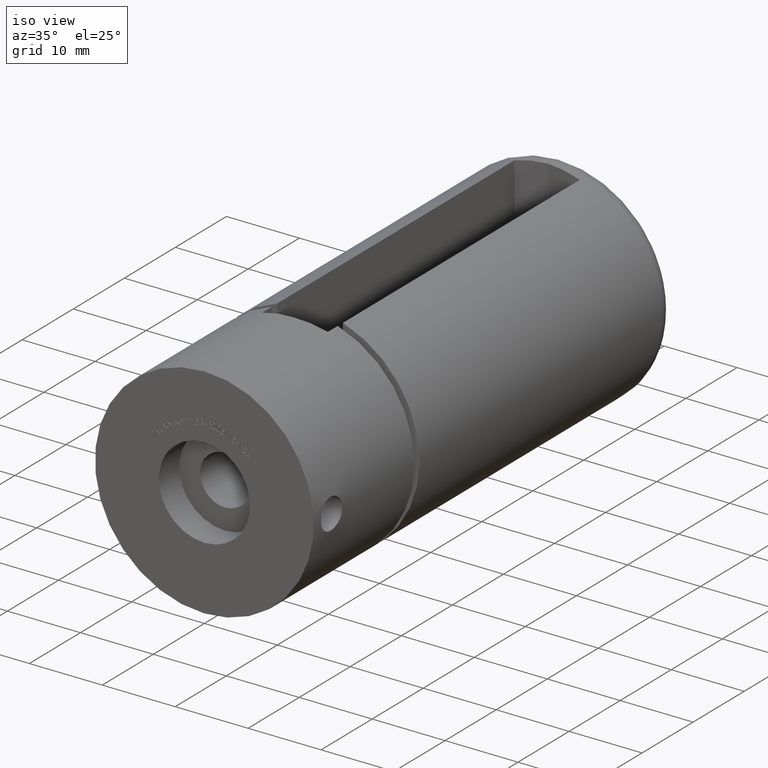
[diagram: clean part render]
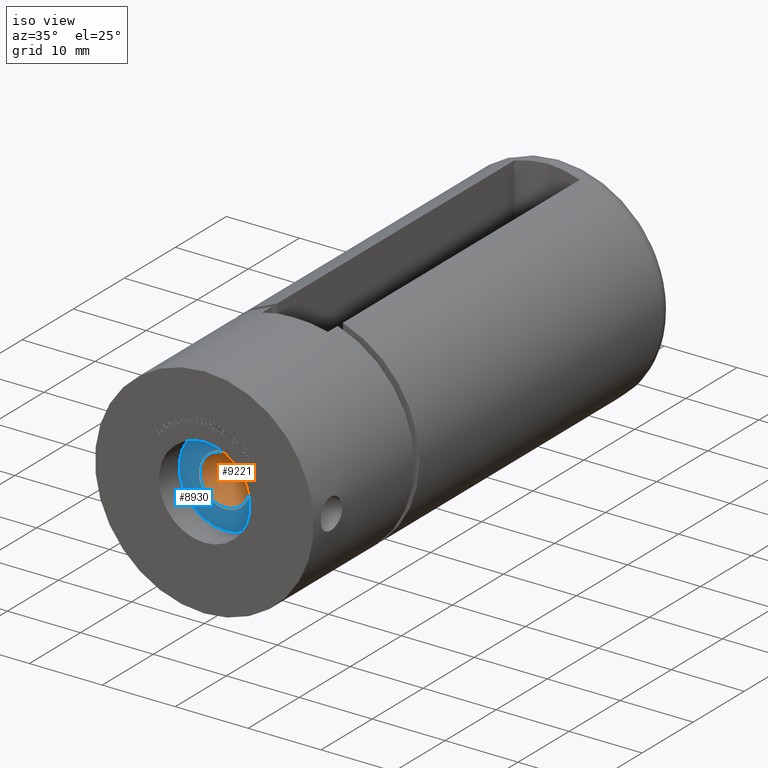
[diagram: same view with the hole feature highlighted: cylindrical wall and planar end face, labeled with their STEP entity ids]
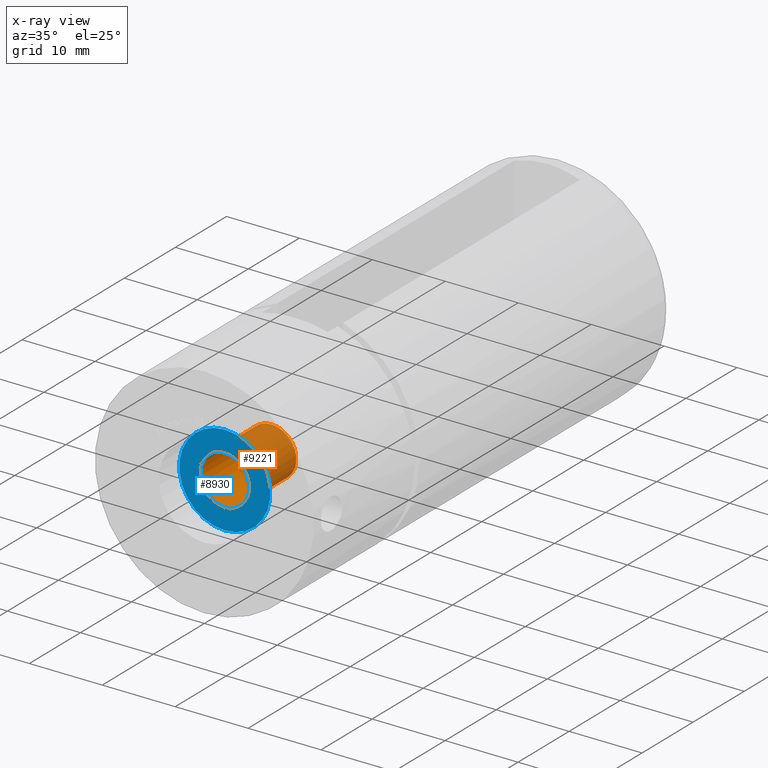
[diagram: x-ray of the same camera — body ghosted, the hole faces saturated]
A machine part, iso view. The highlighted faces form one hole feature of diameter 6.8 mm: the cylindrical wall (entity #9221, orange) and its adjacent planar end face (entity #8930, blue) — they share a circular edge in the B-rep.
The next image is the same camera in x-ray (body ghosted, the hole faces saturated) — the bore reads through the body.
Wall:
#77 = DIRECTION ( 'NONE',  ( -0.0000000000000000000, -1.000000000000000000, -0.0000000000000000000 ) ) ;
#427 = ORIENTED_EDGE ( 'NONE', *, *, #1170, .T. ) ;
#802 = CIRCLE ( 'NONE', #16973, 3.399999999999997700 ) ;
#1170 = EDGE_CURVE ( 'NONE', #4224, #4224, #1639, .T. ) ;
#1639 = CIRCLE ( 'NONE', #12198, 3.399999999999998600 ) ;
#2893 = DIRECTION ( 'NONE',  ( -0.0000000000000000000, -1.000000000000000000, -0.0000000000000000000 ) ) ;
#3001 = EDGE_LOOP ( 'NONE', ( #427 ) ) ;
#3077 = CARTESIAN_POINT ( 'NONE',  ( 0.0000000000000000000, 4.000000000000000000, -0.0000000000000000000 ) ) ;
#4064 = ORIENTED_EDGE ( 'NONE', *, *, #9549, .F. ) ;
#4224 = VERTEX_POINT ( 'NONE', #17314 ) ;
#6521 = DIRECTION ( 'NONE',  ( 0.0000000000000000000, 0.0000000000000000000, 1.000000000000000000 ) ) ;
#6743 = CARTESIAN_POINT ( 'NONE',  ( 0.0000000000000000000, 4.000000000000000000, 0.0000000000000000000 ) ) ;
#7136 = AXIS2_PLACEMENT_3D ( 'NONE', #3077, #2893, #16304 ) ;
#7759 = VERTEX_POINT ( 'NONE', #13453 ) ;
#8336 = FACE_OUTER_BOUND ( 'NONE', #3001, .T. ) ;
#9221 = ADVANCED_FACE ( 'NONE', ( #8336, #12685 ), #16449, .F. ) ;
#9549 = EDGE_CURVE ( 'NONE', #7759, #7759, #802, .T. ) ;
#10465 = DIRECTION ( 'NONE',  ( 0.0000000000000000000, 0.0000000000000000000, -1.000000000000000000 ) ) ;
#12198 = AXIS2_PLACEMENT_3D ( 'NONE', #6743, #77, #10465 ) ;
#12685 = FACE_OUTER_BOUND ( 'NONE', #15654, .T. ) ;
#13453 = CARTESIAN_POINT ( 'NONE',  ( 0.0000000000000000000, 13.15000000000000000, 3.399999999999997700 ) ) ;
#14526 = DIRECTION ( 'NONE',  ( 0.0000000000000000000, -1.000000000000000000, 0.0000000000000000000 ) ) ;
#14757 = CARTESIAN_POINT ( 'NONE',  ( 0.0000000000000000000, 13.15000000000000000, 0.0000000000000000000 ) ) ;
#15654 = EDGE_LOOP ( 'NONE', ( #4064 ) ) ;
#16304 = DIRECTION ( 'NONE',  ( 0.0000000000000000000, 0.0000000000000000000, -1.000000000000000000 ) ) ;
#16449 = CYLINDRICAL_SURFACE ( 'NONE', #7136, 3.399999999999997700 ) ;
#16973 = AXIS2_PLACEMENT_3D ( 'NONE', #14757, #14526, #6521 ) ;
#17314 = CARTESIAN_POINT ( 'NONE',  ( 0.0000000000000000000, 4.000000000000000000, -3.399999999999998600 ) ) ;
End face:
#77 = DIRECTION ( 'NONE',  ( -0.0000000000000000000, -1.000000000000000000, -0.0000000000000000000 ) ) ;
#1170 = EDGE_CURVE ( 'NONE', #4224, #4224, #1639, .T. ) ;
#1320 = CARTESIAN_POINT ( 'NONE',  ( 0.0000000000000000000, 4.000000000000000000, 0.0000000000000000000 ) ) ;
#1639 = CIRCLE ( 'NONE', #12198, 3.399999999999998600 ) ;
#2022 = ORIENTED_EDGE ( 'NONE', *, *, #17063, .T. ) ;
#3160 = VERTEX_POINT ( 'NONE', #5444 ) ;
#4224 = VERTEX_POINT ( 'NONE', #17314 ) ;
#4966 = CARTESIAN_POINT ( 'NONE',  ( 0.0000000000000000000, 4.000000000000000000, 0.0000000000000000000 ) ) ;
#5081 = PLANE ( 'NONE',  #10592 ) ;
#5444 = CARTESIAN_POINT ( 'NONE',  ( 0.0000000000000000000, 4.000000000000000000, -6.250000000000000000 ) ) ;
#6094 = EDGE_LOOP ( 'NONE', ( #2022 ) ) ;
#6743 = CARTESIAN_POINT ( 'NONE',  ( 0.0000000000000000000, 4.000000000000000000, 0.0000000000000000000 ) ) ;
#7425 = ORIENTED_EDGE ( 'NONE', *, *, #1170, .F. ) ;
#7704 = DIRECTION ( 'NONE',  ( 0.0000000000000000000, -0.0000000000000000000, -1.000000000000000000 ) ) ;
#7998 = AXIS2_PLACEMENT_3D ( 'NONE', #1320, #17259, #9399 ) ;
#8930 = ADVANCED_FACE ( 'NONE', ( #13319, #11861 ), #5081, .T. ) ;
#9399 = DIRECTION ( 'NONE',  ( 0.0000000000000000000, 0.0000000000000000000, -1.000000000000000000 ) ) ;
#10465 = DIRECTION ( 'NONE',  ( 0.0000000000000000000, 0.0000000000000000000, -1.000000000000000000 ) ) ;
#10592 = AXIS2_PLACEMENT_3D ( 'NONE', #4966, #15676, #7704 ) ;
#11861 = FACE_OUTER_BOUND ( 'NONE', #6094, .T. ) ;
#12198 = AXIS2_PLACEMENT_3D ( 'NONE', #6743, #77, #10465 ) ;
#13319 = FACE_BOUND ( 'NONE', #17331, .T. ) ;
#15676 = DIRECTION ( 'NONE',  ( 0.0000000000000000000, -1.000000000000000000, 0.0000000000000000000 ) ) ;
#15887 = CIRCLE ( 'NONE', #7998, 6.250000000000000000 ) ;
#17063 = EDGE_CURVE ( 'NONE', #3160, #3160, #15887, .T. ) ;
#17259 = DIRECTION ( 'NONE',  ( 0.0000000000000000000, -1.000000000000000000, 0.0000000000000000000 ) ) ;
#17314 = CARTESIAN_POINT ( 'NONE',  ( 0.0000000000000000000, 4.000000000000000000, -3.399999999999998600 ) ) ;
#17331 = EDGE_LOOP ( 'NONE', ( #7425 ) ) ;